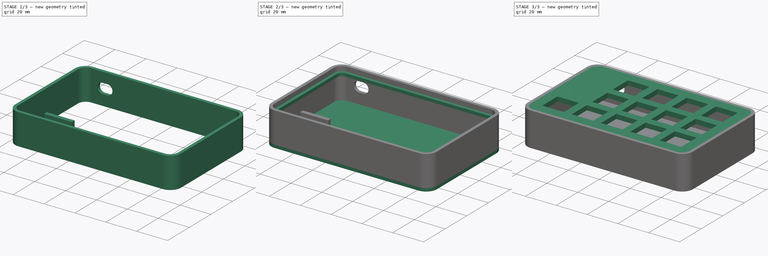
[diagram: build sequence overview — one tinted view per stage of 3, left to right]
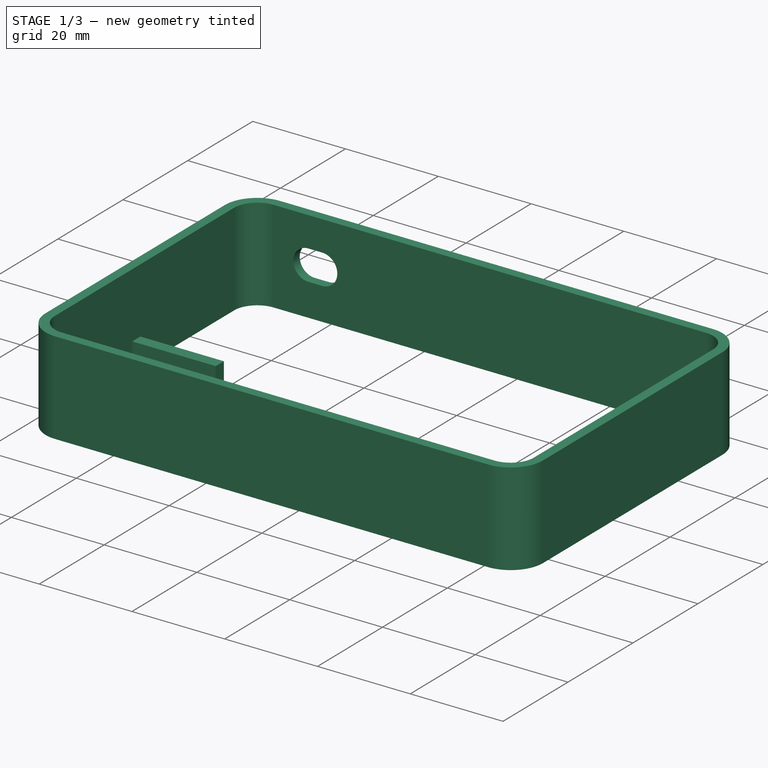
[diagram: stage 1 of 3 — iso view after this stage's code; geometry added in this stage tinted green]
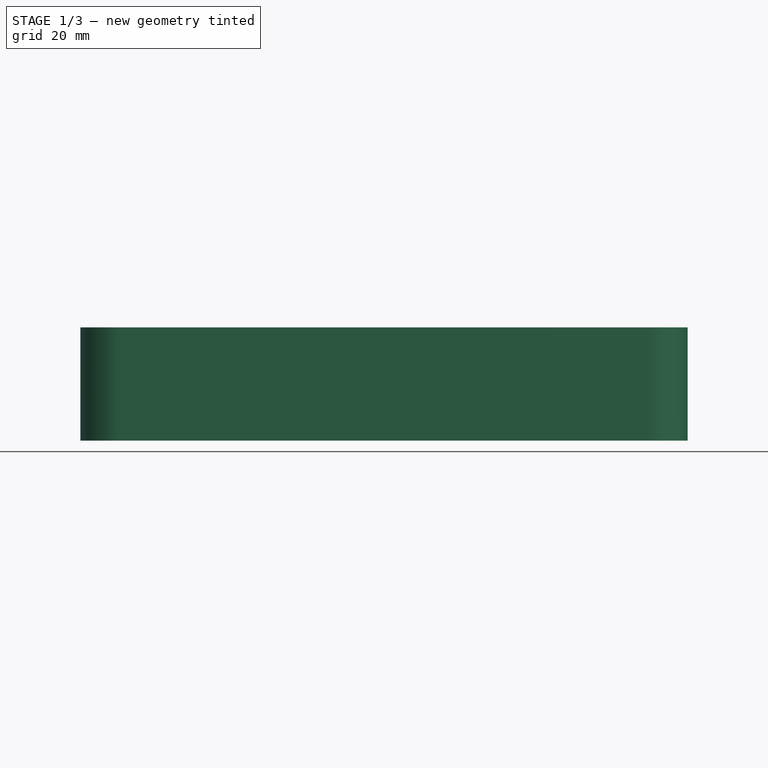
[diagram: stage 1 of 3 — front view after this stage's code; geometry added in this stage tinted green]
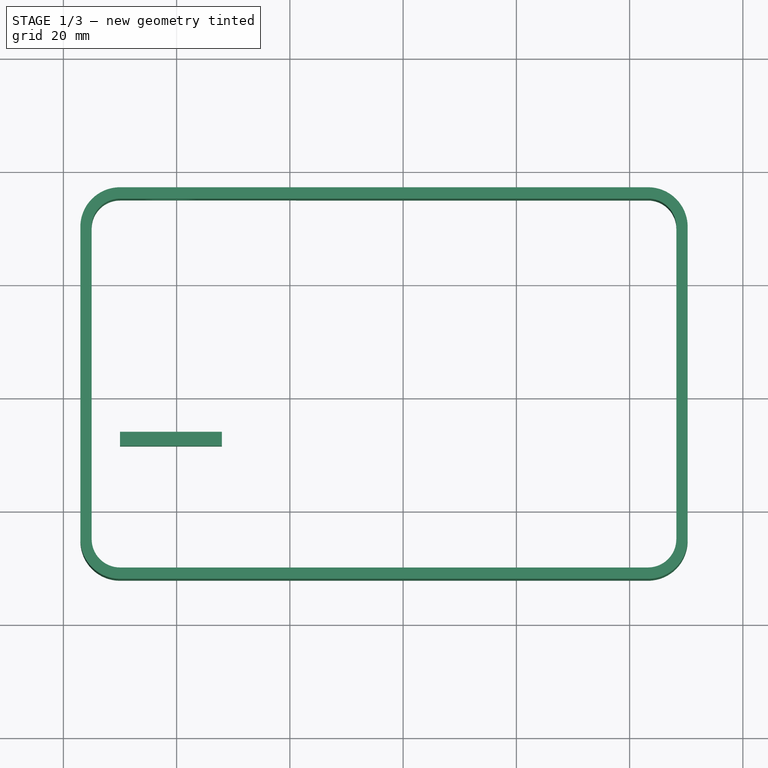
[diagram: stage 1 of 3 — top view after this stage's code; geometry added in this stage tinted green]
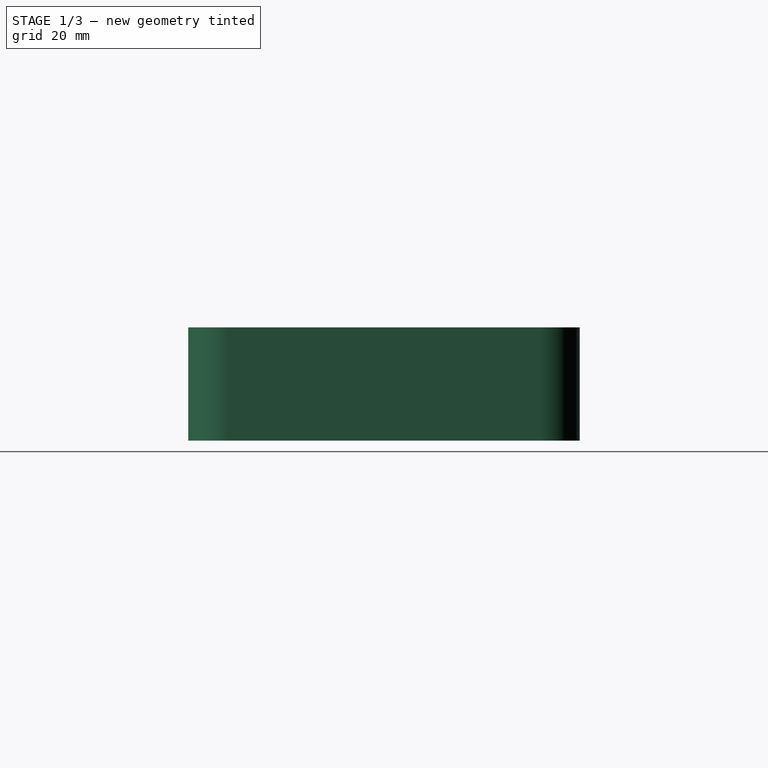
[diagram: stage 1 of 3 — right view after this stage's code; geometry added in this stage tinted green]
FCSTD DOCUMENT  (FreeCAD 0.19R24291 (Git))
Label: macro3
License: All rights reserved
LicenseURL: http://en.wikipedia.org/wiki/All_rights_reserved
objects: Part::Feature×17, Part::Extrusion×9, Sketcher::SketchObject×7, Part::Cut×2, Part::MultiFuse×1
note: 36 computed .brp shape members not serialized (recipe doc carries the construction recipe); baked Part::Feature solids carry a one-line shape summary decoded from their .brp

FEATURE [Sketcher::SketchObject] Sketch004
  ExternalGeometry = -> [Extrude004]
  FullyConstrained = true
  MapMode = 2
  Placement = pos=(0,0,-18) rot=(0,0,1;0rad)
  Support = -> [Extrude004]
  sketch-geometry (8):
    g0: LineSegment StartX=10.001 StartY=-6 StartZ=0 EndX=13.001 EndY=-6 EndZ=0
    g1: LineSegment StartX=13.001 StartY=-6 StartZ=0 EndX=13.001 EndY=-46 EndZ=0
    g2: LineSegment StartX=13.001 StartY=-46 StartZ=0 EndX=10.001 EndY=-46 EndZ=0
    g3: LineSegment StartX=10.001 StartY=-46 StartZ=0 EndX=10.001 EndY=-6 EndZ=0
    g4: LineSegment StartX=25.001 StartY=-6 StartZ=0 EndX=28.001 EndY=-6 EndZ=0
    g5: LineSegment StartX=28.001 StartY=-6 StartZ=0 EndX=28.001 EndY=-46 EndZ=0
    g6: LineSegment StartX=28.001 StartY=-46 StartZ=0 EndX=25.001 EndY=-46 EndZ=0
    g7: LineSegment StartX=25.001 StartY=-46 StartZ=0 EndX=25.001 EndY=-6 EndZ=0
  constraints (24):
    c: Coincident(g0,g1)
    c: Coincident(g1,g2)
    c: Coincident(g2,g3)
    c: Coincident(g3,g0)
    c: Horizontal(g0)
    c: Horizontal(g2)
    c: Vertical(g1)
    c: Vertical(g3)
    c: DistanceX(g0,g0) = 3
    c: DistanceY(g1,g1) = 40
    c: DistanceY(g0,g-3) = 1
    c: Coincident(g4,g5)
    c: Coincident(g5,g6)
    c: Coincident(g6,g7)
    c: Coincident(g7,g4)
    c: Horizontal(g4)
    c: Horizontal(g6)
    c: Vertical(g5)
    c: Vertical(g7)
    c: DistanceX(g4,g4) = 3
    c: DistanceY(g7,g7) = 40
    c: DistanceY(g4,g-3) = 1
    c: DistanceX(g0,g4) = 12
    c: DistanceX(g-4,g2) = 5
FEATURE [Part::Extrusion] Extrude006  label="Pro Micro supports"
  Base = -> Sketch004
  Dir = (0,0,1)
  DirMode = 2
  FaceMakerClass = Part::FaceMakerBullseye
  LengthFwd = 5
  LengthRev = 0
  Solid = true
  Symmetric = false
FEATURE [Sketcher::SketchObject] Sketch005
  ExternalGeometry = -> [Extrude006]
  FullyConstrained = true
  MapMode = 2
  Placement = pos=(0,0,-18) rot=(0,0,1;0rad)
  Support = -> [Extrude004]
  sketch-geometry (4):
    g0: LineSegment StartX=10.001 StartY=-46 StartZ=0 EndX=28.001 EndY=-46 EndZ=0
    g1: LineSegment StartX=28.001 StartY=-46 StartZ=0 EndX=28.001 EndY=-48.5 EndZ=0
    g2: LineSegment StartX=28.001 StartY=-48.5 StartZ=0 EndX=10.001 EndY=-48.5 EndZ=0
    g3: LineSegment StartX=10.001 StartY=-48.5 StartZ=0 EndX=10.001 EndY=-46 EndZ=0
  constraints (10):
    c: Coincident(g0,g1)
    c: Coincident(g1,g2)
    c: Coincident(g2,g3)
    c: Coincident(g3,g0)
    c: Horizontal(g2)
    c: Vertical(g1)
    c: Vertical(g3)
    c: Coincident(g0,g-3)
    c: Coincident(g0,g-4)
    c: DistanceY(g1,g1) = 2.5
FEATURE [Part::Extrusion] Extrude007  label="Pro Micro backpiece"
  Base = -> Sketch005
  Dir = (0,0,1)
  DirMode = 2
  FaceMakerClass = Part::FaceMakerBullseye
  LengthFwd = 8
  LengthRev = 0
  Solid = true
  Symmetric = false
FEATURE [Sketcher::SketchObject] Sketch001  label="outer contour"
  ExternalGeometry = -> [Face015]
  FullyConstrained = true
  MapMode = 3
  Placement = pos=(0,0,0) rot=(1,0,0;3.14159rad)
  Support = -> [Sketch006]
  sketch-geometry (16):
    g0: LineSegment StartX=3 StartY=65.151 StartZ=0 EndX=3 EndY=10.001 EndZ=0
    g1: LineSegment StartX=10.001 StartY=2.999 StartZ=0 EndX=103.251 EndY=2.999 EndZ=0
    g2: ArcOfCircle CenterX=10.002 CenterY=10.001 CenterZ=0 NormalX=0 NormalY=0 NormalZ=1 AngleXU=0 Radius=7.002 StartAngle=3.14159 EndAngle=4.71225
    g3: LineSegment StartX=10.001 StartY=72.152 StartZ=0 EndX=103.251 EndY=72.152 EndZ=0
    g4: LineSegment StartX=110.251 StartY=65.151 StartZ=0 EndX=110.254 EndY=10.001 EndZ=0
    g5: ArcOfCircle CenterX=103.25 CenterY=65.151 CenterZ=0 NormalX=0 NormalY=0 NormalZ=1 AngleXU=0 Radius=7.001 StartAngle=1e-16 EndAngle=1.57065
    g6: ArcOfCircle CenterX=103.251 CenterY=10.002 CenterZ=0 NormalX=0 NormalY=0 NormalZ=1 AngleXU=0 Radius=7.003 StartAngle=4.71239 EndAngle=6.28304
    g7: ArcOfCircle CenterX=10.001 CenterY=65.151 CenterZ=0 NormalX=0 NormalY=0 NormalZ=1 AngleXU=0 Radius=7.001 StartAngle=1.5708 EndAngle=3.14159
    g8: LineSegment StartX=5 StartY=65.151 StartZ=0 EndX=5.001 EndY=10.001 EndZ=0
    g9: LineSegment StartX=10.001 StartY=5 StartZ=0 EndX=103.251 EndY=5.001 EndZ=0
    g10: LineSegment StartX=108.252 StartY=10.001 StartZ=0 EndX=108.251 EndY=65.151 EndZ=0
    g11: LineSegment StartX=103.251 StartY=70.152 StartZ=0 EndX=10.001 EndY=70.152 EndZ=0
    g12: ArcOfCircle CenterX=103.25 CenterY=65.151 CenterZ=0 NormalX=0 NormalY=0 NormalZ=1 AngleXU=0 Radius=5.001 StartAngle=-9e-16 EndAngle=1.5706
    g13: ArcOfCircle CenterX=103.251 CenterY=10.002 CenterZ=0 NormalX=0 NormalY=0 NormalZ=1 AngleXU=0 Radius=5.001 StartAngle=4.71239 EndAngle=6.28299
    g14: ArcOfCircle CenterX=10.002 CenterY=10.001 CenterZ=0 NormalX=0 NormalY=0 NormalZ=1 AngleXU=0 Radius=5.001 StartAngle=3.14159 EndAngle=4.71219
    g15: ArcOfCircle CenterX=10.001 CenterY=65.151 CenterZ=0 NormalX=0 NormalY=0 NormalZ=1 AngleXU=0 Radius=5.001 StartAngle=1.5708 EndAngle=3.14159
  constraints (45):
    c: Vertical(g0)
    c: Horizontal(g1)
    c: Vertical(g1,g-4)
    c: Coincident(g2,g0)
    c: Coincident(g2,g1)
    c: Horizontal(g3)
    c: Vertical(g3,g-7)
    c: Horizontal(g-3,g0)
    c: PointOnObject(g5,g4)
    c: Coincident(g5,g3)
    c: Horizontal(g2,g-3)
    c: Horizontal(g-6,g4)
    c: Horizontal(g4,g5)
    c: Horizontal(g5,g-6)
    c: Coincident(g6,g4)
    c: Vertical(g6,g-4)
    c: Coincident(g1,g6)
    c: Coincident(g7,g0)
    c: Coincident(g3,g7)
    c: Coincident(g8,g-3)
    c: Coincident(g8,g-3)
    c: Coincident(g9,g-4)
    c: Coincident(g9,g-4)
    c: Coincident(g10,g-6)
    c: Coincident(g10,g-6)
    c: Coincident(g11,g-7)
    c: Coincident(g11,g-7)
    c: Coincident(g12,g5)
    c: Coincident(g12,g11)
    c: Coincident(g12,g10)
    c: Coincident(g13,g6)
    c: Coincident(g13,g9)
    c: Coincident(g14,g2)
    c: Coincident(g14,g9)
    c: Coincident(g14,g8)
    c: Coincident(g15,g7)
    c: Coincident(g15,g11)
    c: Coincident(g15,g8)
    c: DistanceX(g0,g8) = 2
    c: Vertical(g3,g11)
    c: Horizontal(g6,g10)
    c: Coincident(g10,g13)
    c: Vertical(g13,g1)
    c: Horizontal(g0,g2)
    c: Horizontal(g15,g0)
FEATURE [Part::Extrusion] Extrude002  label="outer contour001"
  Base = -> Sketch001
  Dir = (0,-2e-16,-1)
  DirMode = 2
  FaceMakerClass = Part::FaceMakerBullseye
  LengthFwd = 20
  LengthRev = 0
  Solid = true
  Symmetric = false
FEATURE [Sketcher::SketchObject] Sketch006  label="Pro Micro opening"
  ExternalGeometry = -> [Extrude006]
  FullyConstrained = true
  MapMode = 3
  Placement = pos=(0,0,0) rot=(1,0,0;1.5708rad)
  Support = -> [Extrude002]
  sketch-geometry (6):
    g0: ArcOfCircle CenterX=20.501 CenterY=-9.75 CenterZ=0 NormalX=0 NormalY=0 NormalZ=1 AngleXU=0 Radius=3.25 StartAngle=4.71239 EndAngle=7.85398
    g1: ArcOfCircle CenterX=17.501 CenterY=-9.75 CenterZ=0 NormalX=0 NormalY=0 NormalZ=1 AngleXU=0 Radius=3.25 StartAngle=1.5708 EndAngle=4.71239
    g2: LineSegment StartX=20.501 StartY=-6.5 StartZ=0 EndX=17.501 EndY=-6.5 EndZ=0
    g3: LineSegment StartX=20.501 StartY=-13 StartZ=0 EndX=17.501 EndY=-13 EndZ=0
    g4: GeomPoint X=23.501 Y=-8.5 Z=0
    g5: GeomPoint X=14.501 Y=-8.5 Z=0
  constraints (14):
    c: Tangent(g0,g3) = 1.5708
    c: Tangent(g0,g2) = -1.5708
    c: Tangent(g2,g1) = -1.5708
    c: Tangent(g3,g1) = 1.5708
    c: Horizontal(g2)
    c: Equal(g0,g1)
    c: DistanceX(g3,g3) = 3
    c: Radius(g0) = 3.25
    c: PointOnObject(g4,g0)
    c: PointOnObject(g5,g1)
    c: Horizontal(g4,g5)
    c: DistanceX(g5,g4) = 9
    c: DistanceX(g0,g-3) = 7.5
    c: Horizontal(g3,g-3)
FEATURE [Part::Extrusion] Extrude008
  Base = -> Sketch006
  Dir = (0,-1,2e-16)
  DirMode = 2
  FaceMakerClass = Part::FaceMakerBullseye
  LengthFwd = 10
  LengthRev = 10
  Solid = true
  Symmetric = false
FEATURE [Part::Cut] Cut001  label="Shell"
  Base = -> Extrude002
  Tool = -> Extrude008
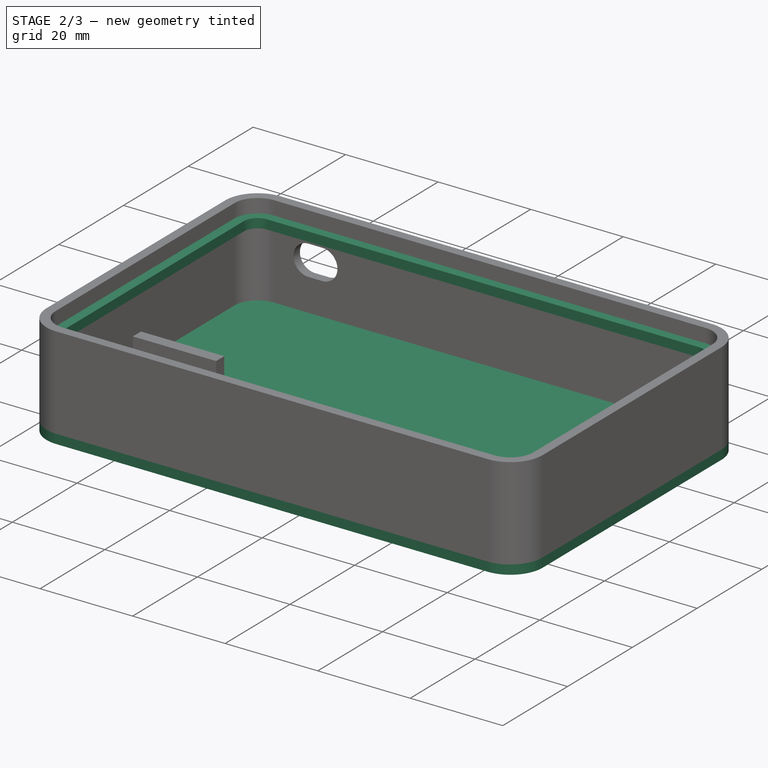
[diagram: stage 2 of 3 — iso view after this stage's code; geometry added in this stage tinted green]
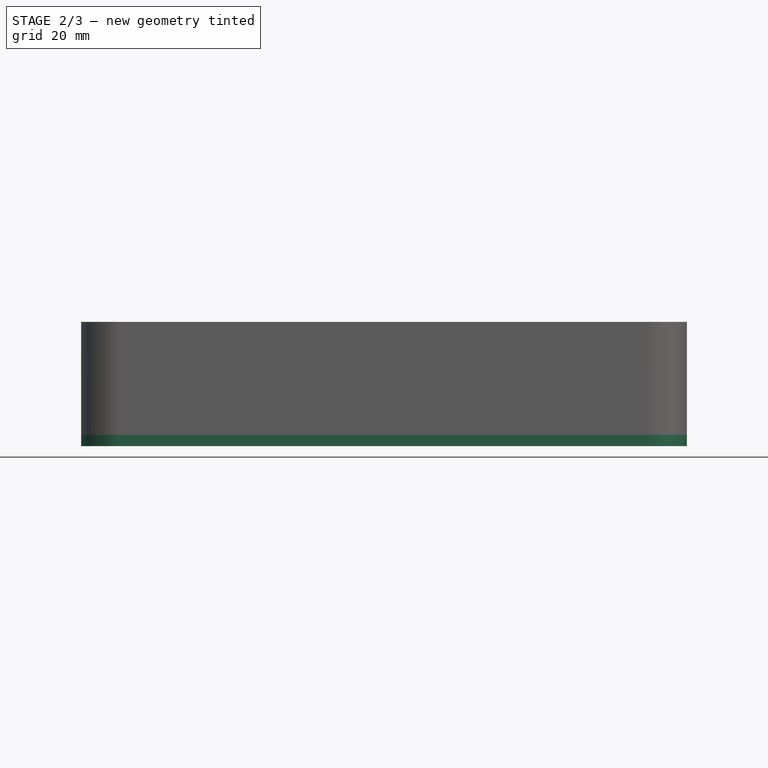
[diagram: stage 2 of 3 — front view after this stage's code; geometry added in this stage tinted green]
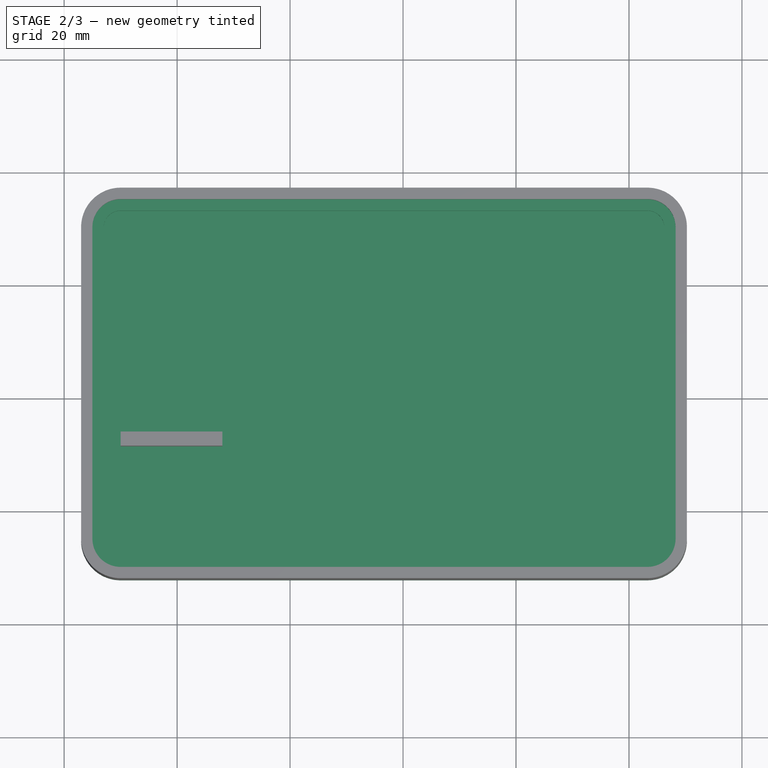
[diagram: stage 2 of 3 — top view after this stage's code; geometry added in this stage tinted green]
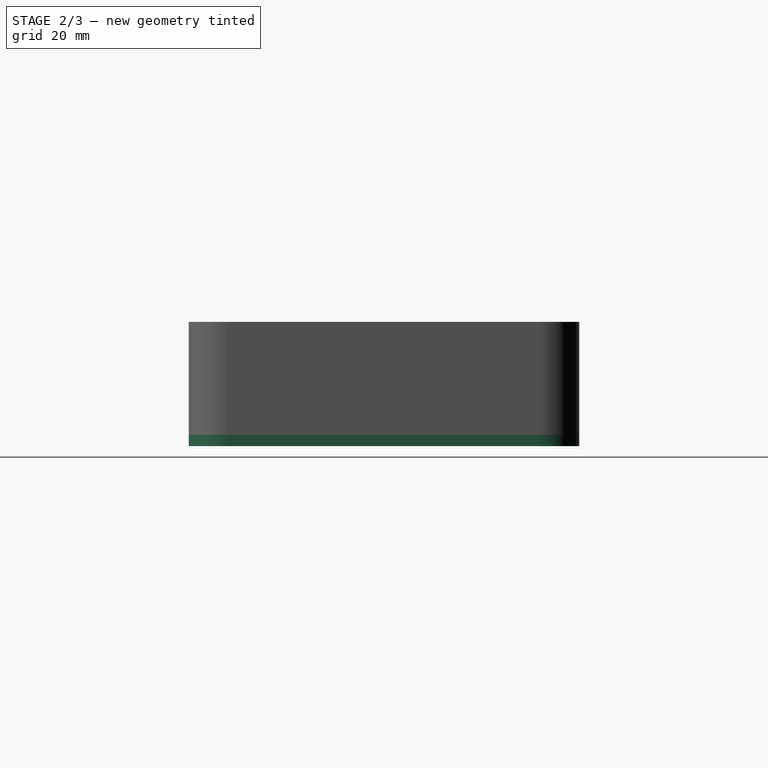
[diagram: stage 2 of 3 — right view after this stage's code; geometry added in this stage tinted green]
FEATURE [Sketcher::SketchObject] Sketch  label="inner lip"
  FullyConstrained = false
  MapMode = 5
  Placement = pos=(0,0,0) rot=(1,0,0;3.14159rad)
  sketch-geometry (16):
    g0: LineSegment StartX=7 StartY=65.151 StartZ=0 EndX=7 EndY=10.001 EndZ=0
    g1: LineSegment StartX=10.001 StartY=6.999 StartZ=0 EndX=103.251 EndY=6.999 EndZ=0
    g2: ArcOfCircle CenterX=10.002 CenterY=10.001 CenterZ=0 NormalX=0 NormalY=0 NormalZ=1 AngleXU=0 Radius=3.002 StartAngle=3.14159 EndAngle=4.71206
    g3: LineSegment StartX=10.001 StartY=68.152 StartZ=0 EndX=103.251 EndY=68.152 EndZ=0
    g4: LineSegment StartX=106.251 StartY=65.151 StartZ=0 EndX=106.254 EndY=10.001 EndZ=0
    g5: ArcOfCircle CenterX=103.25 CenterY=65.151 CenterZ=0 NormalX=0 NormalY=0 NormalZ=1 AngleXU=0 Radius=3.001 StartAngle=-9e-16 EndAngle=1.57046
    g6: ArcOfCircle CenterX=103.251 CenterY=10.002 CenterZ=0 NormalX=0 NormalY=0 NormalZ=1 AngleXU=0 Radius=3.003 StartAngle=4.71239 EndAngle=6.28285
    g7: ArcOfCircle CenterX=10.001 CenterY=65.151 CenterZ=0 NormalX=0 NormalY=0 NormalZ=1 AngleXU=0 Radius=3.001 StartAngle=1.5708 EndAngle=3.14159
    g8: LineSegment StartX=5 StartY=65.151 StartZ=0 EndX=5.001 EndY=10.001 EndZ=0
    g9: LineSegment StartX=10.001 StartY=5 StartZ=0 EndX=103.251 EndY=5.001 EndZ=0
    g10: LineSegment StartX=108.252 StartY=10.001 StartZ=0 EndX=108.251 EndY=65.151 EndZ=0
    g11: LineSegment StartX=103.251 StartY=70.152 StartZ=0 EndX=10.001 EndY=70.152 EndZ=0
    g12: ArcOfCircle CenterX=103.25 CenterY=65.151 CenterZ=0 NormalX=0 NormalY=0 NormalZ=1 AngleXU=0 Radius=5.001 StartAngle=0 EndAngle=1.5706
    g13: ArcOfCircle CenterX=103.251 CenterY=10.002 CenterZ=0 NormalX=0 NormalY=0 NormalZ=1 AngleXU=0 Radius=5.001 StartAngle=4.71239 EndAngle=6.28299
    g14: ArcOfCircle CenterX=10.002 CenterY=10.001 CenterZ=0 NormalX=0 NormalY=0 NormalZ=1 AngleXU=0 Radius=5.001 StartAngle=3.14159 EndAngle=4.71219
    g15: ArcOfCircle CenterX=10.001 CenterY=65.151 CenterZ=0 NormalX=0 NormalY=0 NormalZ=1 AngleXU=0 Radius=5.001 StartAngle=1.5708 EndAngle=3.14159
  constraints (30):
    c: Vertical(g0)
    c: Horizontal(g1)
    c: Coincident(g2,g0)
    c: Coincident(g2,g1)
    c: Horizontal(g3)
    c: PointOnObject(g5,g4)
    c: Coincident(g5,g3)
    c: Horizontal(g4,g5)
    c: Coincident(g6,g4)
    c: Coincident(g1,g6)
    c: Coincident(g7,g0)
    c: Coincident(g3,g7)
    c: Coincident(g12,g5)
    c: Coincident(g12,g11)
    c: Coincident(g12,g10)
    c: Coincident(g13,g6)
    c: Coincident(g13,g9)
    c: Coincident(g14,g2)
    c: Coincident(g14,g9)
    c: Coincident(g14,g8)
    c: Coincident(g15,g7)
    c: Coincident(g15,g11)
    c: Coincident(g15,g8)
    c: DistanceX(g0,g8) = -2
    c: Vertical(g3,g11)
    c: Horizontal(g6,g10)
    c: Coincident(g10,g13)
    c: Vertical(g13,g1)
    c: Horizontal(g0,g2)
    c: Horizontal(g15,g0)
FEATURE [Part::Feature] Face015  label="copy of outline001"
  shape: bbox 103.3 x 65.15 x 2e-07 mm, 1 faces, 0 solids (baked)
FEATURE [Part::Extrusion] Extrude003  label="inner lip001"
  Base = -> Sketch
  Dir = (0,0,-1)
  DirMode = 2
  FaceMakerClass = Part::FaceMakerBullseye
  LengthFwd = 2
  LengthRev = 0
  Placement = pos=(0,0,-3) rot=(0,0,-1;0rad)
  Solid = true
  Symmetric = false
FEATURE [Part::Feature] Face016  label="copy of outline002"
  shape: bbox 103.3 x 65.15 x 2e-07 mm, 1 faces, 0 solids (baked)
FEATURE [Sketcher::SketchObject] Sketch002  label="outer contour002"
  ExternalGeometry = -> [Face016]
  FullyConstrained = false
  MapMode = 5
  Placement = pos=(0,0,0) rot=(1,0,0;3.14159rad)
  Support = -> [Face016]
  sketch-geometry (8):
    g0: LineSegment StartX=3 StartY=65.151 StartZ=0 EndX=3 EndY=10.001 EndZ=0
    g1: LineSegment StartX=10.001 StartY=3 StartZ=0 EndX=103.251 EndY=3 EndZ=0
    g2: ArcOfCircle CenterX=10.001 CenterY=10.001 CenterZ=0 NormalX=0 NormalY=0 NormalZ=1 AngleXU=0 Radius=7.001 StartAngle=3.14159 EndAngle=4.71239
    g3: LineSegment StartX=10.001 StartY=72.152 StartZ=0 EndX=103.251 EndY=72.152 EndZ=0
    g4: LineSegment StartX=110.252 StartY=65.151 StartZ=0 EndX=110.253 EndY=10.001 EndZ=0
    g5: ArcOfCircle CenterX=103.251 CenterY=65.151 CenterZ=0 NormalX=0 NormalY=0 NormalZ=1 AngleXU=0 Radius=7.001 StartAngle=1e-16 EndAngle=1.5708
    g6: ArcOfCircle CenterX=103.251 CenterY=10.002 CenterZ=0 NormalX=0 NormalY=0 NormalZ=1 AngleXU=0 Radius=7.002 StartAngle=4.71239 EndAngle=6.28304
    g7: ArcOfCircle CenterX=10.001 CenterY=65.151 CenterZ=0 NormalX=0 NormalY=0 NormalZ=1 AngleXU=0 Radius=7.001 StartAngle=1.5708 EndAngle=3.14159
  constraints (28):
    c: Vertical(g0)
    c: Horizontal(g1)
    c: Vertical(g1,g-4)
    c: Coincident(g2,g0)
    c: Coincident(g2,g1)
    c: Horizontal(g3)
    c: Vertical(g3,g-7)
    c: Horizontal(g-3,g0)
    c: PointOnObject(g5,g4)
    c: Coincident(g5,g3)
    c: Horizontal(g2,g-3)
    c: Horizontal(g-6,g4)
    c: Horizontal(g4,g5)
    c: Horizontal(g5,g-6)
    c: Coincident(g6,g4)
    c: Vertical(g6,g-4)
    c: Coincident(g1,g6)
    c: Coincident(g7,g0)
    c: Coincident(g3,g7)
    c: DistanceX(g0,g-3) = 2
    c: Vertical(g3,g-7)
    c: Horizontal(g6,g-6)
    c: Horizontal(g0,g2)
    c: Vertical(g7,g7)
    c: Vertical(g5,g3)
    c: Vertical(g6,g1)
    c: Vertical(g2,g1)
    c: Horizontal(g7,g7)
FEATURE [Part::Extrusion] Extrude004  label="Bottom Inner Part"
  Base = -> Face016
  Dir = (0,0,-1)
  DirMode = 2
  FaceMakerClass = Part::FaceMakerBullseye
  LengthFwd = 2
  LengthRev = 0
  Placement = pos=(0,0,-18) rot=(0,0,1;0rad)
  Solid = false
  Symmetric = false
FEATURE [Part::Feature] Face017  label="copy of outline003"
  shape: bbox 103.3 x 65.15 x 2e-07 mm, 1 faces, 0 solids (baked)
FEATURE [Sketcher::SketchObject] Sketch003  label="bottom lower part"
  AttachmentOffset = pos=(0,0,20) rot=(0,0,1;0rad)
  ExternalGeometry = -> [Face017]
  FullyConstrained = true
  MapMode = 5
  Placement = pos=(0,0,-20) rot=(1,0,0;3.14159rad)
  Support = -> [Face017]
  sketch-geometry (8):
    g0: LineSegment StartX=3 StartY=65.151 StartZ=0 EndX=3 EndY=10.001 EndZ=0
    g1: LineSegment StartX=10.001 StartY=3 StartZ=0 EndX=103.251 EndY=3 EndZ=0
    g2: ArcOfCircle CenterX=10.001 CenterY=10.001 CenterZ=0 NormalX=0 NormalY=0 NormalZ=1 AngleXU=0 Radius=7.001 StartAngle=3.14159 EndAngle=4.71239
    g3: LineSegment StartX=10.001 StartY=72.152 StartZ=0 EndX=103.251 EndY=72.152 EndZ=0
    g4: LineSegment StartX=110.252 StartY=65.151 StartZ=0 EndX=110.252 EndY=10.001 EndZ=0
    g5: ArcOfCircle CenterX=103.251 CenterY=65.151 CenterZ=0 NormalX=0 NormalY=0 NormalZ=1 AngleXU=0 Radius=7.001 StartAngle=1e-16 EndAngle=1.5708
    g6: ArcOfCircle CenterX=103.251 CenterY=10.001 CenterZ=0 NormalX=0 NormalY=0 NormalZ=1 AngleXU=0 Radius=7.001 StartAngle=4.71239 EndAngle=6.28319
    g7: ArcOfCircle CenterX=10.001 CenterY=65.151 CenterZ=0 NormalX=0 NormalY=0 NormalZ=1 AngleXU=0 Radius=7.001 StartAngle=1.5708 EndAngle=3.14159
  constraints (29):
    c: Vertical(g0)
    c: Horizontal(g1)
    c: Vertical(g1,g-4)
    c: Coincident(g2,g0)
    c: Coincident(g2,g1)
    c: Horizontal(g3)
    c: Vertical(g3,g-7)
    c: Horizontal(g-3,g0)
    c: PointOnObject(g5,g4)
    c: Coincident(g5,g3)
    c: Horizontal(g2,g-3)
    c: Horizontal(g-6,g4)
    c: Horizontal(g4,g5)
    c: Horizontal(g5,g-6)
    c: Coincident(g6,g4)
    c: Vertical(g6,g-4)
    c: Coincident(g1,g6)
    c: Coincident(g7,g0)
    c: Coincident(g3,g7)
    c: DistanceX(g0,g-3) = 2
    c: Vertical(g3,g-7)
    c: Horizontal(g6,g-6)
    c: Horizontal(g0,g2)
    c: Vertical(g7,g3)
    c: Horizontal(g7,g0)
    c: Vertical(g5,g5)
    c: Vertical(g6,g1)
    c: Horizontal(g6,g4)
    c: Vertical(g2,g1)
FEATURE [Part::Extrusion] Extrude005  label="Bottom outer part"
  Base = -> Sketch003
  Dir = (0,0,-1)
  DirMode = 2
  FaceMakerClass = Part::FaceMakerBullseye
  LengthFwd = 2
  LengthRev = 0
  Solid = true
  Symmetric = false
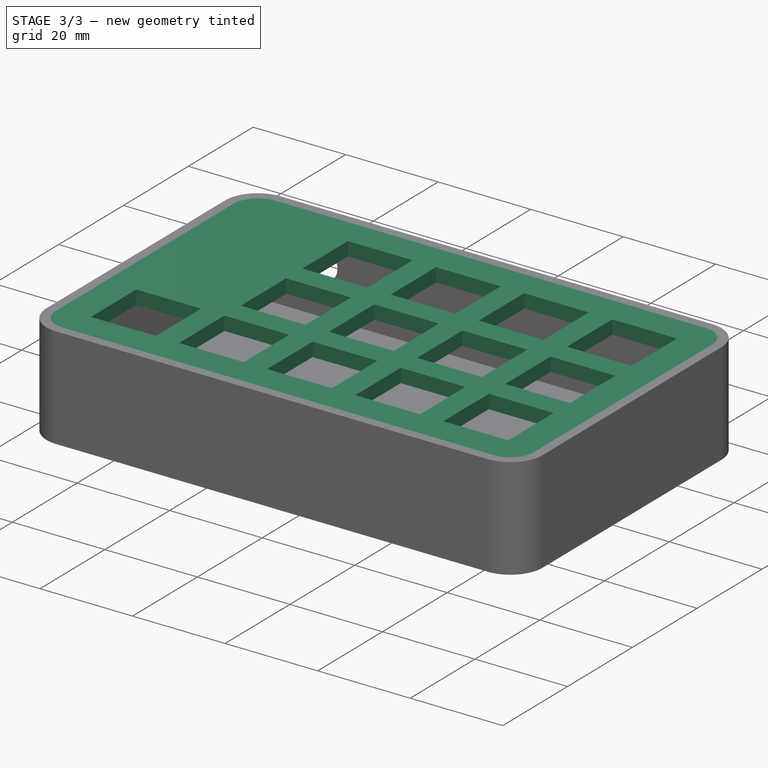
[diagram: stage 3 of 3 — iso view after this stage's code; geometry added in this stage tinted green]
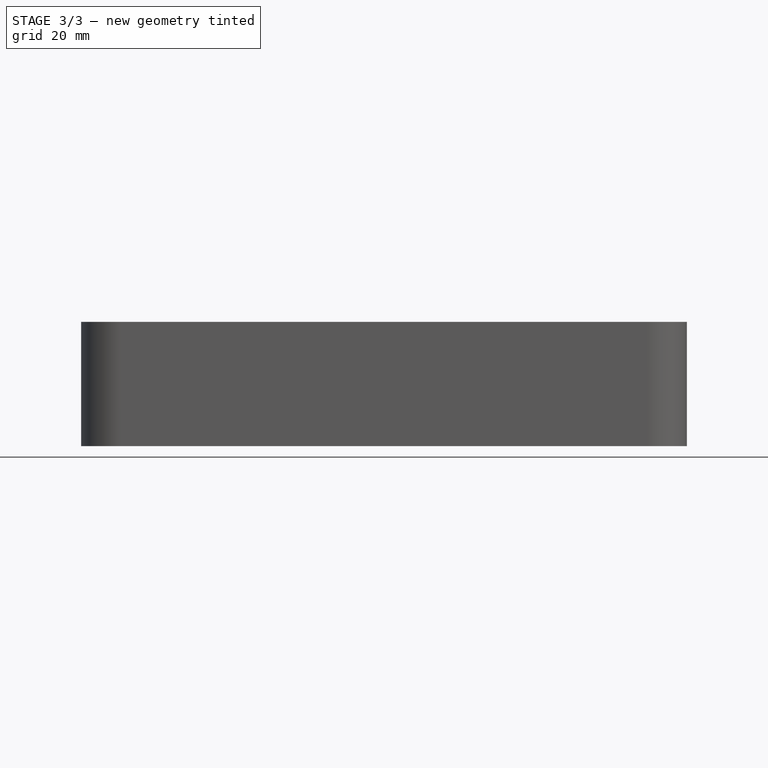
[diagram: stage 3 of 3 — front view after this stage's code; geometry added in this stage tinted green]
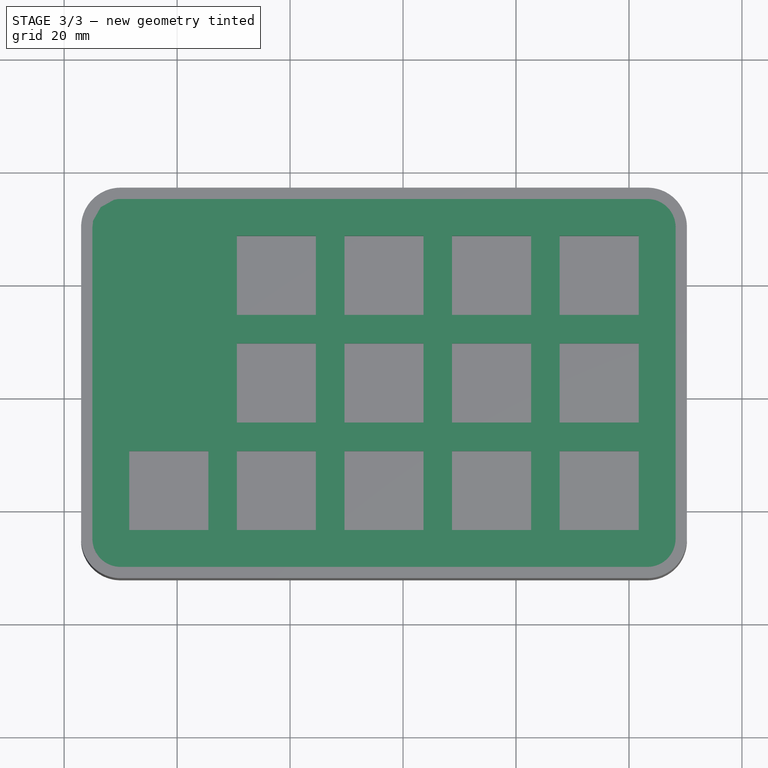
[diagram: stage 3 of 3 — top view after this stage's code; geometry added in this stage tinted green]
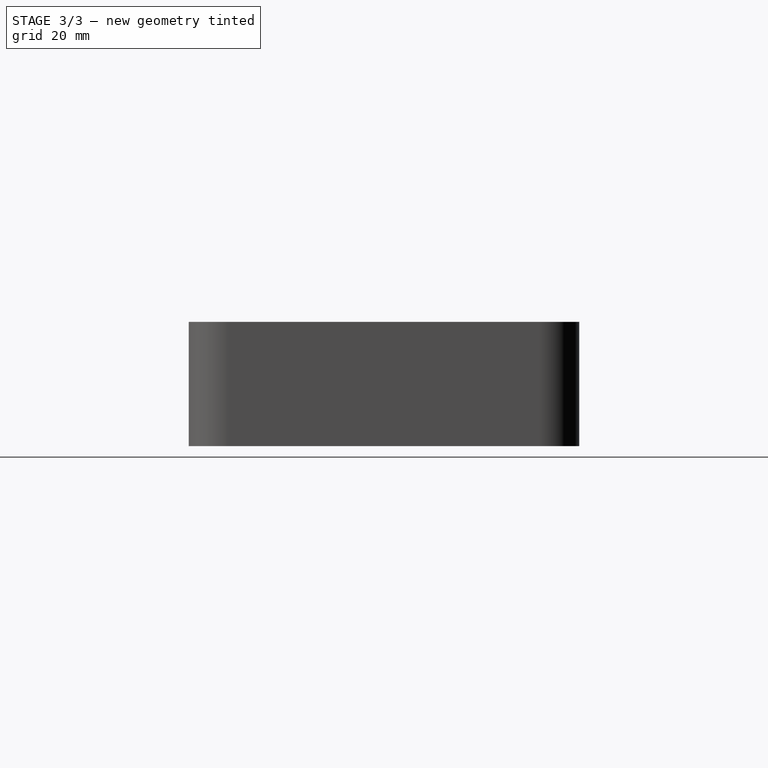
[diagram: stage 3 of 3 — right view after this stage's code; geometry added in this stage tinted green]
FEATURE [Part::Feature] Face
  shape: bbox 103.3 x 65.15 x 2e-07 mm, 1 faces, 0 solids (baked)
FEATURE [Part::Feature] Face001 .. Face013  x13 (patterned run collapsed; names and placements below)
  shape: bbox 14 x 14 x 2e-07 mm, 1 faces, 0 solids (baked)
FEATURE [Part::MultiFuse] Fusion
  Shapes = -> [Face001,Face002,Face003,Face004,Face005,Face006,Face007,Face008,Face009,Face010,Face011,Face012,Face013]
FEATURE [Part::Extrusion] Extrude
  Base = -> Face
  Dir = (0,0,-1)
  DirMode = 2
  FaceMakerClass = Part::FaceMakerBullseye
  LengthFwd = 3
  LengthRev = 0
  Solid = true
  Symmetric = false
FEATURE [Part::Extrusion] Extrude001
  Base = -> Fusion
  Dir = (0,0,1)
  DirMode = 2
  FaceMakerClass = Part::FaceMakerBullseye
  LengthFwd = 3
  LengthRev = 3
  Solid = true
  Symmetric = false
FEATURE [Part::Cut] Cut  label="Plate"
  Base = -> Extrude
  Tool = -> Extrude001
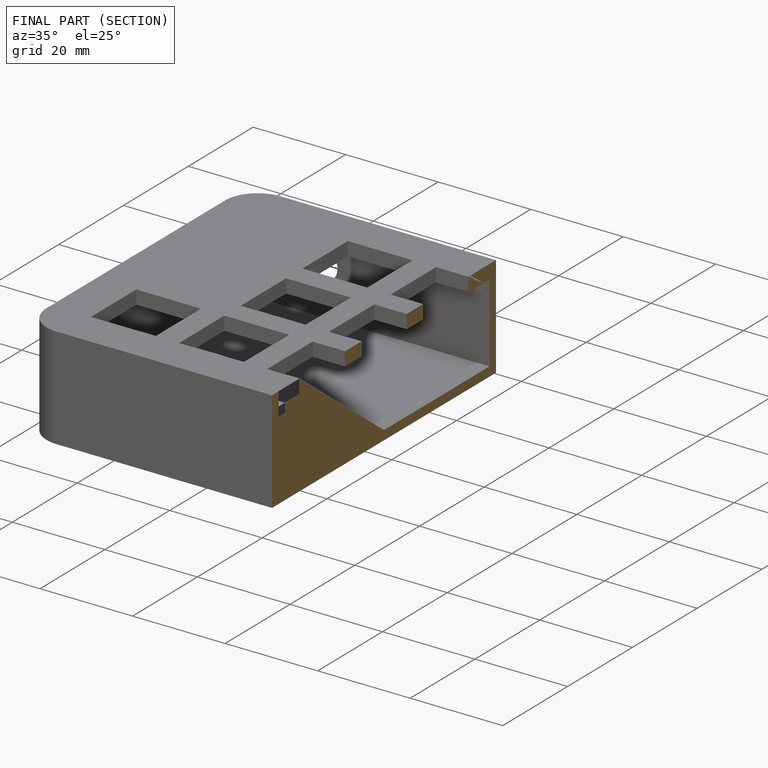
[diagram: finished part — half-section view (interior)]
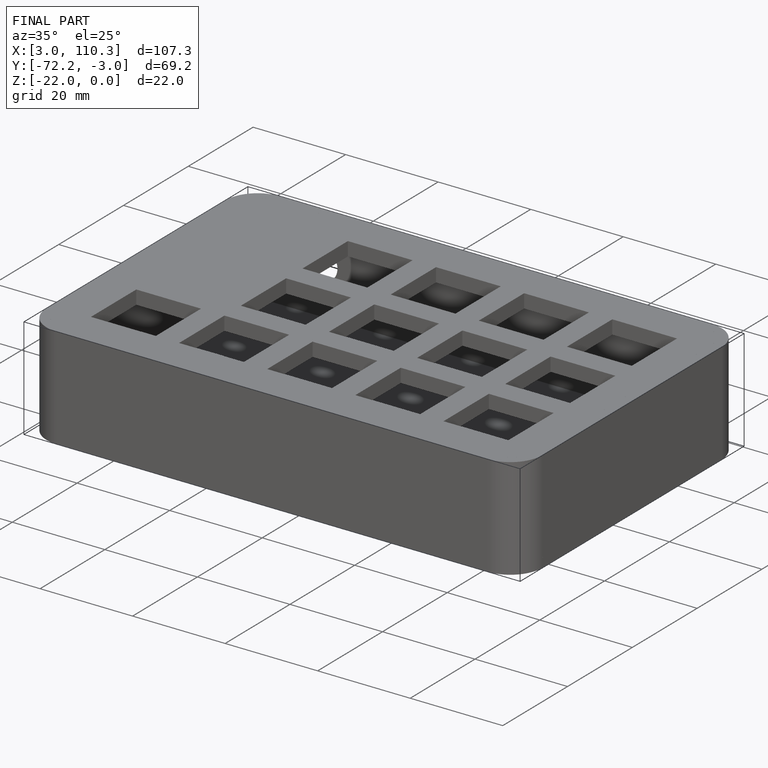
[diagram: finished part — iso view with bounding-box wireframe]
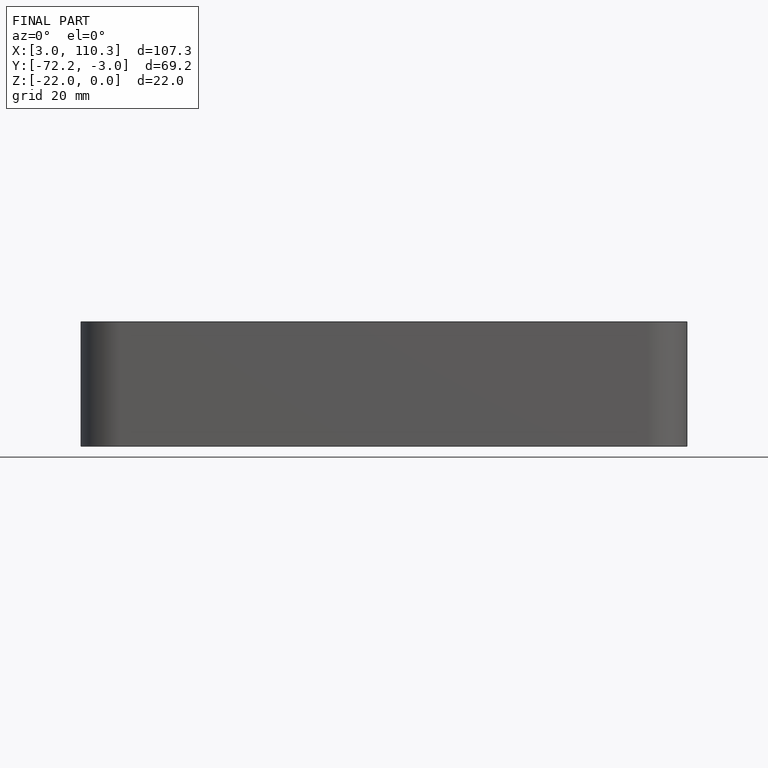
[diagram: finished part — front view with bounding-box wireframe]
